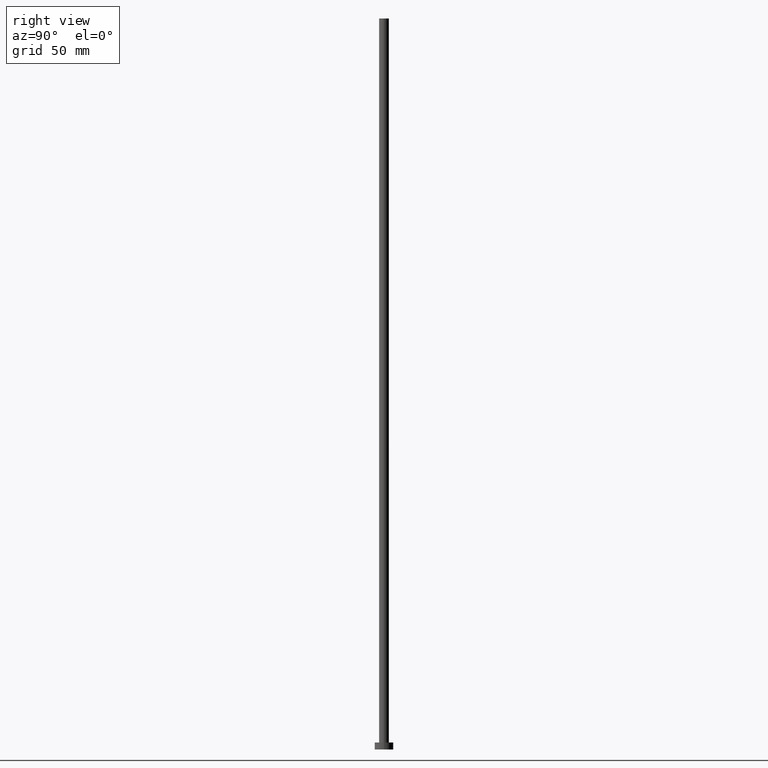
[diagram: clean part render]
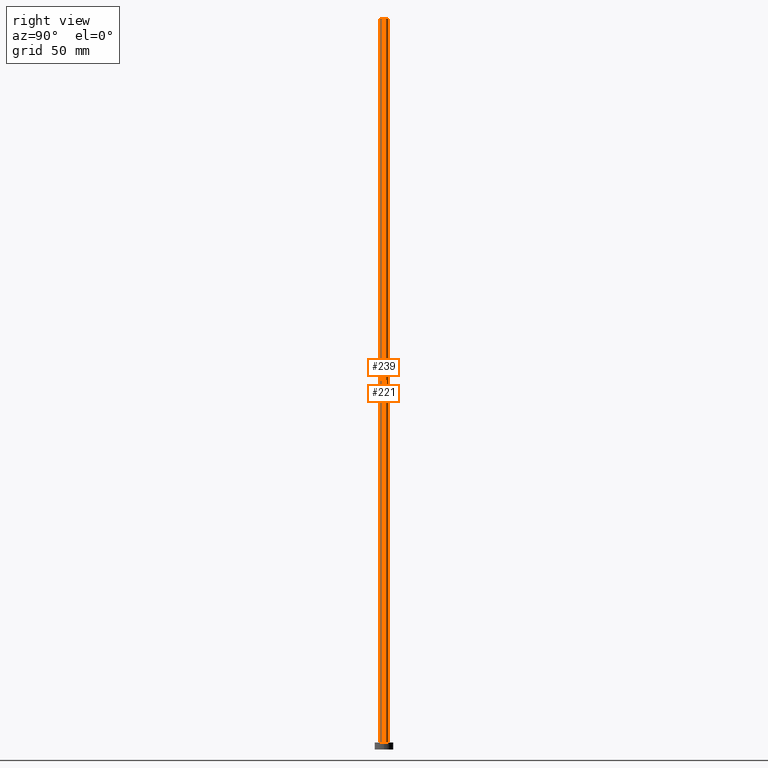
[diagram: same view with one multi-face feature highlighted, each face labeled with its STEP entity id]
A machine part, right view. The highlighted faces form ONE feature: a constant-radius fillet chain: 2 tangent blend faces with common blend radius 2.1 mm. The faces share edges in the B-rep.
Their STEP definitions:
[1] entity #239 (Cylinder):
#3 = DIRECTION ( 'NONE',  ( -1.000000000000000000, 0.000000000000000000, 0.000000000000000000 ) ) ;
#4 = LINE ( 'NONE', #90, #60 ) ;
#18 = DIRECTION ( 'NONE',  ( 0.000000000000000000, 0.000000000000000000, 1.000000000000000000 ) ) ;
#34 = VERTEX_POINT ( 'NONE', #61 ) ;
#59 = CARTESIAN_POINT ( 'NONE',  ( -2.100000000000000089, 0.000000000000000000, 315.0000000000000000 ) ) ;
#60 = VECTOR ( 'NONE', #147, 1000.000000000000000 ) ;
#61 = CARTESIAN_POINT ( 'NONE',  ( 2.100000000000000089, 2.571758278209441957E-16, 315.0000000000000000 ) ) ;
#63 = AXIS2_PLACEMENT_3D ( 'NONE', #215, #18, #119 ) ;
#66 = CYLINDRICAL_SURFACE ( 'NONE', #88, 2.100000000000000089 ) ;
#70 = CARTESIAN_POINT ( 'NONE',  ( 0.000000000000000000, 0.000000000000000000, 315.0000000000000000 ) ) ;
#75 = DIRECTION ( 'NONE',  ( 0.000000000000000000, 0.000000000000000000, 1.000000000000000000 ) ) ;
#84 = EDGE_CURVE ( 'NONE', #152, #95, #118, .T. ) ;
#88 = AXIS2_PLACEMENT_3D ( 'NONE', #70, #109, #3 ) ;
#90 = CARTESIAN_POINT ( 'NONE',  ( 2.100000000000000089, 2.571758278209441957E-16, 315.0000000000000000 ) ) ;
#93 = VERTEX_POINT ( 'NONE', #59 ) ;
#95 = VERTEX_POINT ( 'NONE', #121 ) ;
#97 = CIRCLE ( 'NONE', #242, 2.100000000000000089 ) ;
#109 = DIRECTION ( 'NONE',  ( -0.000000000000000000, -0.000000000000000000, -1.000000000000000000 ) ) ;
#115 = ORIENTED_EDGE ( 'NONE', *, *, #137, .F. ) ;
#118 = CIRCLE ( 'NONE', #63, 2.100000000000000089 ) ;
#119 = DIRECTION ( 'NONE',  ( 1.000000000000000000, 0.000000000000000000, 0.000000000000000000 ) ) ;
#121 = CARTESIAN_POINT ( 'NONE',  ( 2.100000000000000089, 2.571758278209441957E-16, 3.000000000000000000 ) ) ;
#124 = CARTESIAN_POINT ( 'NONE',  ( 0.000000000000000000, 0.000000000000000000, 315.0000000000000000 ) ) ;
#126 = DIRECTION ( 'NONE',  ( -0.000000000000000000, -0.000000000000000000, -1.000000000000000000 ) ) ;
#130 = ORIENTED_EDGE ( 'NONE', *, *, #156, .T. ) ;
#137 = EDGE_CURVE ( 'NONE', #93, #34, #97, .T. ) ;
#142 = ORIENTED_EDGE ( 'NONE', *, *, #84, .T. ) ;
#143 = LINE ( 'NONE', #183, #162 ) ;
#147 = DIRECTION ( 'NONE',  ( -0.000000000000000000, -0.000000000000000000, -1.000000000000000000 ) ) ;
#152 = VERTEX_POINT ( 'NONE', #184 ) ;
#156 = EDGE_CURVE ( 'NONE', #93, #152, #143, .T. ) ;
#162 = VECTOR ( 'NONE', #126, 1000.000000000000000 ) ;
#170 = EDGE_CURVE ( 'NONE', #34, #95, #4, .T. ) ;
#183 = CARTESIAN_POINT ( 'NONE',  ( -2.100000000000000089, 0.000000000000000000, 315.0000000000000000 ) ) ;
#184 = CARTESIAN_POINT ( 'NONE',  ( -2.100000000000000089, 0.000000000000000000, 3.000000000000000000 ) ) ;
#215 = CARTESIAN_POINT ( 'NONE',  ( 0.000000000000000000, 0.000000000000000000, 3.000000000000000000 ) ) ;
#228 = DIRECTION ( 'NONE',  ( 1.000000000000000000, 0.000000000000000000, 0.000000000000000000 ) ) ;
#231 = ORIENTED_EDGE ( 'NONE', *, *, #170, .F. ) ;
#239 = ADVANCED_FACE ( 'NONE', ( #241 ), #66, .T. ) ;
#241 = FACE_OUTER_BOUND ( 'NONE', #246, .T. ) ;
#242 = AXIS2_PLACEMENT_3D ( 'NONE', #124, #75, #228 ) ;
#246 = EDGE_LOOP ( 'NONE', ( #231, #115, #130, #142 ) ) ;
[2] entity #221 (Cylinder):
#1 = CYLINDRICAL_SURFACE ( 'NONE', #154, 2.100000000000000089 ) ;
#4 = LINE ( 'NONE', #90, #60 ) ;
#20 = DIRECTION ( 'NONE',  ( 1.000000000000000000, 0.000000000000000000, 0.000000000000000000 ) ) ;
#34 = VERTEX_POINT ( 'NONE', #61 ) ;
#37 = EDGE_CURVE ( 'NONE', #34, #93, #159, .T. ) ;
#48 = CARTESIAN_POINT ( 'NONE',  ( 0.000000000000000000, 0.000000000000000000, 315.0000000000000000 ) ) ;
#54 = ORIENTED_EDGE ( 'NONE', *, *, #37, .F. ) ;
#59 = CARTESIAN_POINT ( 'NONE',  ( -2.100000000000000089, 0.000000000000000000, 315.0000000000000000 ) ) ;
#60 = VECTOR ( 'NONE', #147, 1000.000000000000000 ) ;
#61 = CARTESIAN_POINT ( 'NONE',  ( 2.100000000000000089, 2.571758278209441957E-16, 315.0000000000000000 ) ) ;
#79 = AXIS2_PLACEMENT_3D ( 'NONE', #128, #229, #20 ) ;
#90 = CARTESIAN_POINT ( 'NONE',  ( 2.100000000000000089, 2.571758278209441957E-16, 315.0000000000000000 ) ) ;
#93 = VERTEX_POINT ( 'NONE', #59 ) ;
#95 = VERTEX_POINT ( 'NONE', #121 ) ;
#107 = ORIENTED_EDGE ( 'NONE', *, *, #170, .T. ) ;
#113 = EDGE_LOOP ( 'NONE', ( #54, #107, #235, #196 ) ) ;
#121 = CARTESIAN_POINT ( 'NONE',  ( 2.100000000000000089, 2.571758278209441957E-16, 3.000000000000000000 ) ) ;
#126 = DIRECTION ( 'NONE',  ( -0.000000000000000000, -0.000000000000000000, -1.000000000000000000 ) ) ;
#128 = CARTESIAN_POINT ( 'NONE',  ( 0.000000000000000000, 0.000000000000000000, 3.000000000000000000 ) ) ;
#136 = CARTESIAN_POINT ( 'NONE',  ( 0.000000000000000000, 0.000000000000000000, 315.0000000000000000 ) ) ;
#139 = DIRECTION ( 'NONE',  ( 0.000000000000000000, 0.000000000000000000, 1.000000000000000000 ) ) ;
#143 = LINE ( 'NONE', #183, #162 ) ;
#147 = DIRECTION ( 'NONE',  ( -0.000000000000000000, -0.000000000000000000, -1.000000000000000000 ) ) ;
#152 = VERTEX_POINT ( 'NONE', #184 ) ;
#154 = AXIS2_PLACEMENT_3D ( 'NONE', #48, #171, #204 ) ;
#156 = EDGE_CURVE ( 'NONE', #93, #152, #143, .T. ) ;
#159 = CIRCLE ( 'NONE', #166, 2.100000000000000089 ) ;
#162 = VECTOR ( 'NONE', #126, 1000.000000000000000 ) ;
#166 = AXIS2_PLACEMENT_3D ( 'NONE', #136, #139, #219 ) ;
#170 = EDGE_CURVE ( 'NONE', #34, #95, #4, .T. ) ;
#171 = DIRECTION ( 'NONE',  ( -0.000000000000000000, -0.000000000000000000, -1.000000000000000000 ) ) ;
#177 = CIRCLE ( 'NONE', #79, 2.100000000000000089 ) ;
#183 = CARTESIAN_POINT ( 'NONE',  ( -2.100000000000000089, 0.000000000000000000, 315.0000000000000000 ) ) ;
#184 = CARTESIAN_POINT ( 'NONE',  ( -2.100000000000000089, 0.000000000000000000, 3.000000000000000000 ) ) ;
#196 = ORIENTED_EDGE ( 'NONE', *, *, #156, .F. ) ;
#201 = EDGE_CURVE ( 'NONE', #95, #152, #177, .T. ) ;
#204 = DIRECTION ( 'NONE',  ( -1.000000000000000000, 0.000000000000000000, 0.000000000000000000 ) ) ;
#219 = DIRECTION ( 'NONE',  ( 1.000000000000000000, 0.000000000000000000, 0.000000000000000000 ) ) ;
#221 = ADVANCED_FACE ( 'NONE', ( #223 ), #1, .T. ) ;
#223 = FACE_OUTER_BOUND ( 'NONE', #113, .T. ) ;
#229 = DIRECTION ( 'NONE',  ( 0.000000000000000000, 0.000000000000000000, 1.000000000000000000 ) ) ;
#235 = ORIENTED_EDGE ( 'NONE', *, *, #201, .T. ) ;